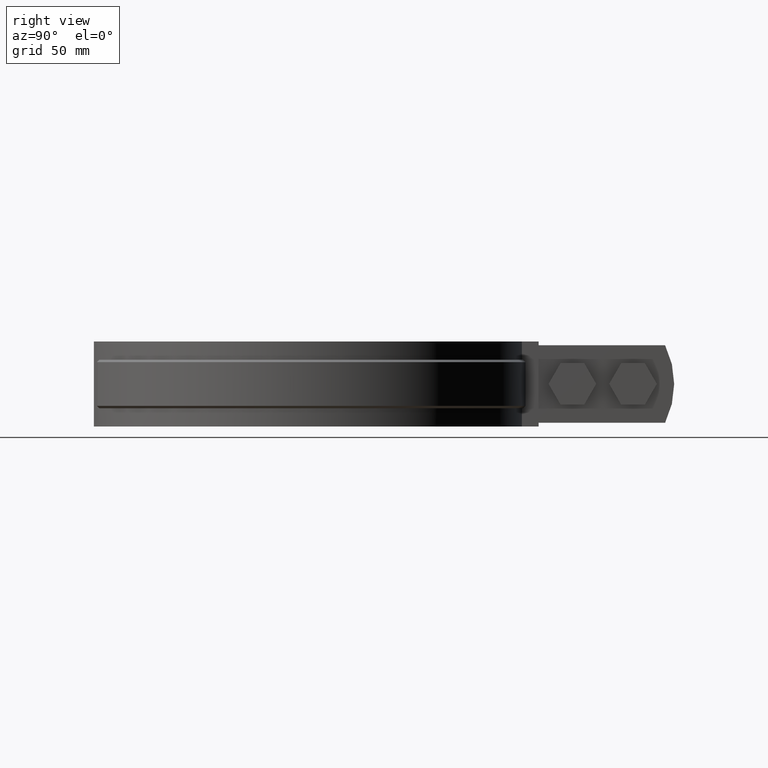
[diagram: clean part render]
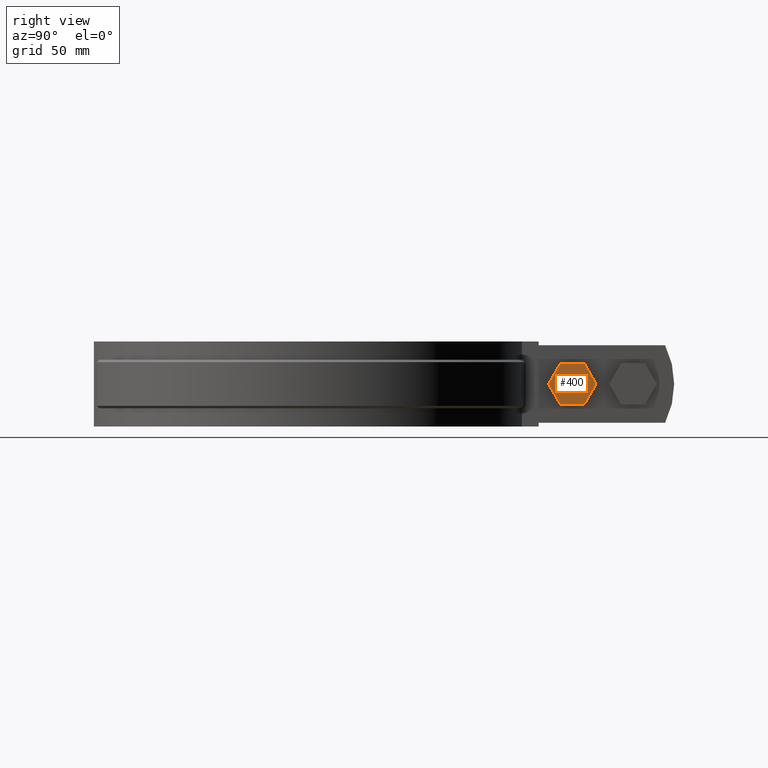
[diagram: same view with one face highlighted and labeled with its STEP entity id]
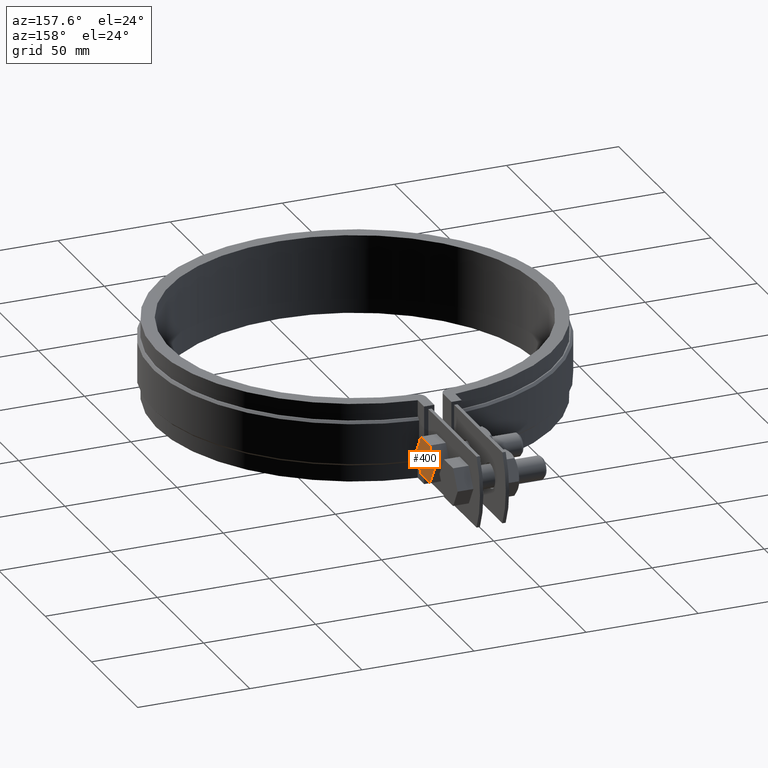
[diagram: same view with one face highlighted and labeled with its STEP entity id]
A machine part, right view. The second image highlights one B-rep face of the part: STEP entity #400.
A second angle (auxiliary view) of the same face is appended — the face is thin or edge-on in the first view.
In plain terms, the highlighted planar face has unit normal (-1, 0, 0).
Its self-contained STEP definition (entity closure, byte-faithful):
#400 = ADVANCED_FACE( '', ( #653 ), #654, .F. );
#653 = FACE_OUTER_BOUND( '', #1731, .T. );
#654 = PLANE( '', #1732 );
#1731 = EDGE_LOOP( '', ( #4144, #4145, #4146, #4147, #4148, #4149 ) );
#1732 = AXIS2_PLACEMENT_3D( '', #4150, #4151, #4152 );
#4144 = ORIENTED_EDGE( '', *, *, #4889, .T. );
#4145 = ORIENTED_EDGE( '', *, *, #4890, .T. );
#4146 = ORIENTED_EDGE( '', *, *, #4884, .T. );
#4147 = ORIENTED_EDGE( '', *, *, #4891, .T. );
#4148 = ORIENTED_EDGE( '', *, *, #4892, .T. );
#4149 = ORIENTED_EDGE( '', *, *, #4887, .T. );
#4150 = CARTESIAN_POINT( '', ( 13.4999999999998, 94.2805551343574, -24.4999999999998 ) );
#4151 = DIRECTION( '', ( -1.00000000000000, 6.22721247786546E-017, 0.000000000000000 ) );
#4152 = DIRECTION( '', ( 0.000000000000000, 0.000000000000000, 1.00000000000000 ) );
#4884 = EDGE_CURVE( '', #5482, #5480, #5483, .T. );
#4887 = EDGE_CURVE( '', #5487, #5485, #5488, .T. );
#4889 = EDGE_CURVE( '', #5485, #5490, #5491, .T. );
#4890 = EDGE_CURVE( '', #5490, #5482, #5492, .T. );
#4891 = EDGE_CURVE( '', #5480, #5493, #5494, .T. );
#4892 = EDGE_CURVE( '', #5493, #5487, #5495, .T. );
#5480 = VERTEX_POINT( '', #8288 );
#5482 = VERTEX_POINT( '', #8291 );
#5483 = LINE( '', #8292, #8293 );
#5485 = VERTEX_POINT( '', #8296 );
#5487 = VERTEX_POINT( '', #8299 );
#5488 = LINE( '', #8300, #8301 );
#5490 = VERTEX_POINT( '', #8304 );
#5491 = LINE( '', #8305, #8306 );
#5492 = LINE( '', #8307, #8308 );
#5493 = VERTEX_POINT( '', #8309 );
#5494 = LINE( '', #8310, #8311 );
#5495 = LINE( '', #8312, #8313 );
#8288 = CARTESIAN_POINT( '', ( 13.4999999999998, 113.910464286804, -7.50000000000013 ) );
#8291 = CARTESIAN_POINT( '', ( 13.4999999999998, 118.817941574915, -16.0000000000000 ) );
#8292 = CARTESIAN_POINT( '', ( 13.4999999999998, 118.817941574915, -16.0000000000000 ) );
#8293 = VECTOR( '', #9042, 1000.00000000000 );
#8296 = CARTESIAN_POINT( '', ( 13.4999999999998, 104.095509710581, -24.4999999999998 ) );
#8299 = CARTESIAN_POINT( '', ( 13.4999999999998, 99.1880324224690, -16.0000000000000 ) );
#8300 = CARTESIAN_POINT( '', ( 13.4999999999998, 99.1880324224690, -16.0000000000000 ) );
#8301 = VECTOR( '', #9045, 1000.00000000000 );
#8304 = CARTESIAN_POINT( '', ( 13.4999999999998, 113.910464286804, -24.4999999999998 ) );
#8305 = CARTESIAN_POINT( '', ( 13.4999999999998, 104.095509710581, -24.4999999999998 ) );
#8306 = VECTOR( '', #9047, 1000.00000000000 );
#8307 = CARTESIAN_POINT( '', ( 13.4999999999998, 113.910464286804, -24.4999999999998 ) );
#8308 = VECTOR( '', #9048, 1000.00000000000 );
#8309 = CARTESIAN_POINT( '', ( 13.4999999999998, 104.095509710581, -7.50000000000013 ) );
#8310 = CARTESIAN_POINT( '', ( 13.4999999999998, 113.910464286804, -7.50000000000013 ) );
#8311 = VECTOR( '', #9049, 1000.00000000000 );
#8312 = CARTESIAN_POINT( '', ( 13.4999999999998, 104.095509710581, -7.50000000000013 ) );
#8313 = VECTOR( '', #9050, 1000.00000000000 );
#9042 = DIRECTION( '', ( -3.11360623893265E-017, -0.499999999999988, 0.866025403784446 ) );
#9045 = DIRECTION( '', ( 3.11360623893265E-017, 0.499999999999987, -0.866025403784446 ) );
#9047 = DIRECTION( '', ( 6.22721247786546E-017, 1.00000000000000, -3.33066907387558E-016 ) );
#9048 = DIRECTION( '', ( 3.11360623893265E-017, 0.499999999999988, 0.866025403784446 ) );
#9049 = DIRECTION( '', ( -6.22721247786546E-017, -1.00000000000000, 1.91890799698930E-049 ) );
#9050 = DIRECTION( '', ( -3.11360623893265E-017, -0.499999999999988, -0.866025403784446 ) );